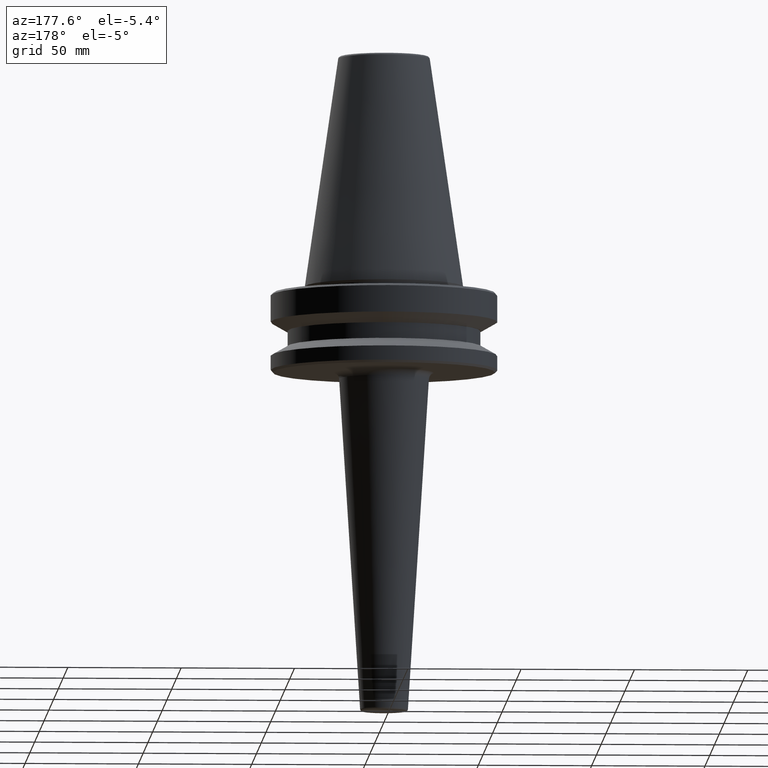
[diagram: clean part render]
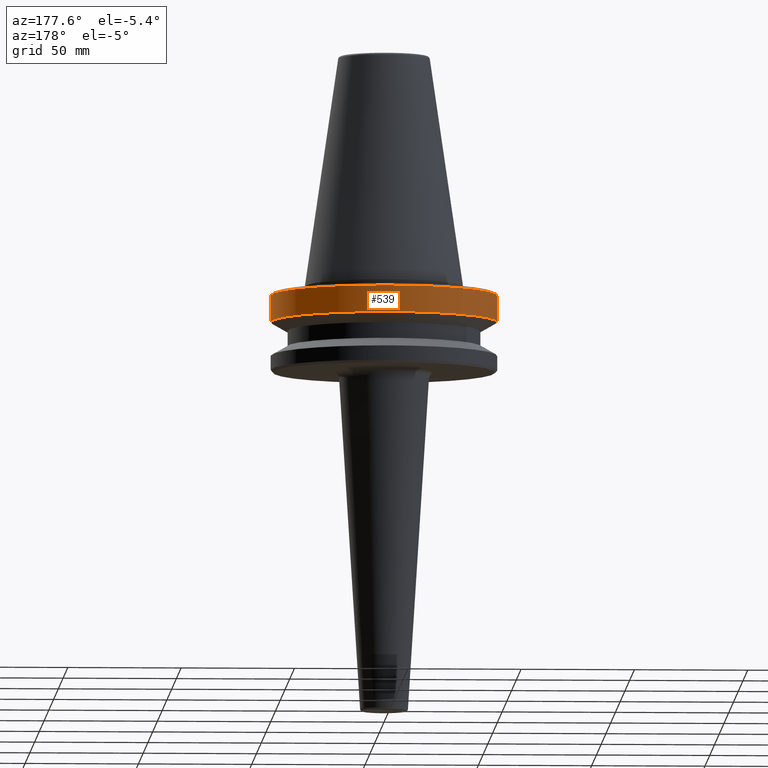
[diagram: same view with one face highlighted and labeled with its STEP entity id]
A machine part, auxiliary view. The second image highlights one B-rep face of the part: STEP entity #539.
In plain terms, the highlighted cylindrical surface (partial cylindrical patch) has radius 50 mm, axis along (-0, -0, 1).
Its self-contained STEP definition (entity closure, byte-faithful):
#54 = ORIENTED_EDGE ( 'NONE', *, *, #607, .F. ) ;
#56 = VERTEX_POINT ( 'NONE', #173 ) ;
#57 = DIRECTION ( 'NONE',  ( 1.000000000000000000, 0.0000000000000000000, 0.0000000000000000000 ) ) ;
#83 = DIRECTION ( 'NONE',  ( 1.000000000000000000, 0.0000000000000000000, 0.0000000000000000000 ) ) ;
#96 = AXIS2_PLACEMENT_3D ( 'NONE', #184, #180, #83 ) ;
#135 = VERTEX_POINT ( 'NONE', #220 ) ;
#162 = CYLINDRICAL_SURFACE ( 'NONE', #96, 50.00000000000000000 ) ;
#169 = VECTOR ( 'NONE', #215, 1000.000000000000000 ) ;
#173 = CARTESIAN_POINT ( 'NONE',  ( -50.00000000000000000, 6.123233995736766900E-015, -15.70022000322675400 ) ) ;
#180 = DIRECTION ( 'NONE',  ( -0.0000000000000000000, -0.0000000000000000000, 1.000000000000000000 ) ) ;
#184 = CARTESIAN_POINT ( 'NONE',  ( 0.0000000000000000000, 0.0000000000000000000, 124.5046326327850600 ) ) ;
#209 = AXIS2_PLACEMENT_3D ( 'NONE', #556, #920, #57 ) ;
#215 = DIRECTION ( 'NONE',  ( -0.0000000000000000000, -0.0000000000000000000, 1.000000000000000000 ) ) ;
#220 = CARTESIAN_POINT ( 'NONE',  ( 50.00000000000000000, 0.0000000000000000000, -15.70022000322675400 ) ) ;
#301 = CARTESIAN_POINT ( 'NONE',  ( 0.0000000000000000000, 0.0000000000000000000, -3.999999999999989800 ) ) ;
#326 = EDGE_CURVE ( 'NONE', #425, #856, #497, .T. ) ;
#392 = FACE_OUTER_BOUND ( 'NONE', #540, .T. ) ;
#408 = ORIENTED_EDGE ( 'NONE', *, *, #566, .T. ) ;
#415 = CARTESIAN_POINT ( 'NONE',  ( -50.00000000000000000, 6.123233995736766100E-015, -3.999999999999989800 ) ) ;
#425 = VERTEX_POINT ( 'NONE', #676 ) ;
#457 = DIRECTION ( 'NONE',  ( 1.000000000000000000, 0.0000000000000000000, 0.0000000000000000000 ) ) ;
#467 = CIRCLE ( 'NONE', #209, 50.00000000000000000 ) ;
#481 = CARTESIAN_POINT ( 'NONE',  ( -50.00000000000000000, 6.123233995736766100E-015, 124.5046326327850600 ) ) ;
#497 = CIRCLE ( 'NONE', #987, 50.00000000000000000 ) ;
#536 = LINE ( 'NONE', #965, #169 ) ;
#539 = ADVANCED_FACE ( 'NONE', ( #392 ), #162, .T. ) ;
#540 = EDGE_LOOP ( 'NONE', ( #408, #602, #957, #54 ) ) ;
#556 = CARTESIAN_POINT ( 'NONE',  ( 0.0000000000000000000, 0.0000000000000000000, -15.70022000322675400 ) ) ;
#566 = EDGE_CURVE ( 'NONE', #135, #56, #467, .T. ) ;
#601 = EDGE_CURVE ( 'NONE', #56, #856, #821, .T. ) ;
#602 = ORIENTED_EDGE ( 'NONE', *, *, #601, .T. ) ;
#607 = EDGE_CURVE ( 'NONE', #135, #425, #536, .T. ) ;
#676 = CARTESIAN_POINT ( 'NONE',  ( 50.00000000000000000, 0.0000000000000000000, -3.999999999999989800 ) ) ;
#694 = DIRECTION ( 'NONE',  ( -0.0000000000000000000, -0.0000000000000000000, 1.000000000000000000 ) ) ;
#821 = LINE ( 'NONE', #481, #925 ) ;
#832 = DIRECTION ( 'NONE',  ( -0.0000000000000000000, -0.0000000000000000000, 1.000000000000000000 ) ) ;
#856 = VERTEX_POINT ( 'NONE', #415 ) ;
#920 = DIRECTION ( 'NONE',  ( -0.0000000000000000000, -0.0000000000000000000, 1.000000000000000000 ) ) ;
#925 = VECTOR ( 'NONE', #832, 1000.000000000000000 ) ;
#957 = ORIENTED_EDGE ( 'NONE', *, *, #326, .F. ) ;
#965 = CARTESIAN_POINT ( 'NONE',  ( 50.00000000000000000, 0.0000000000000000000, 124.5046326327850600 ) ) ;
#987 = AXIS2_PLACEMENT_3D ( 'NONE', #301, #694, #457 ) ;